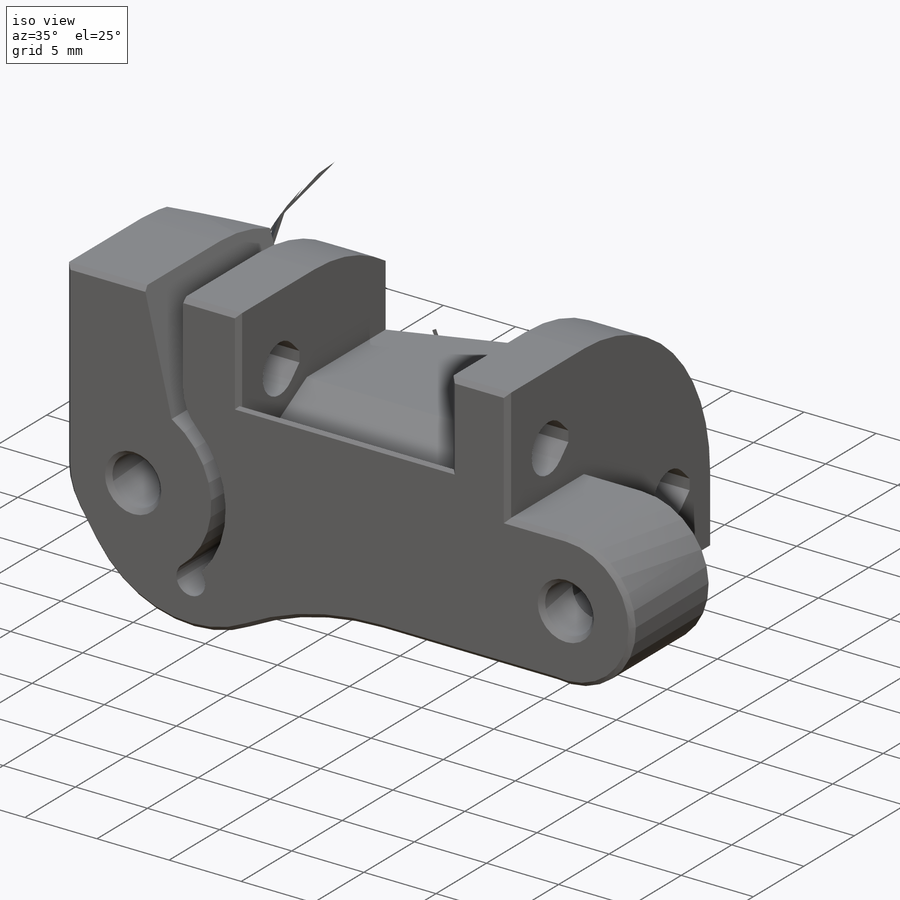
[diagram: iso view]
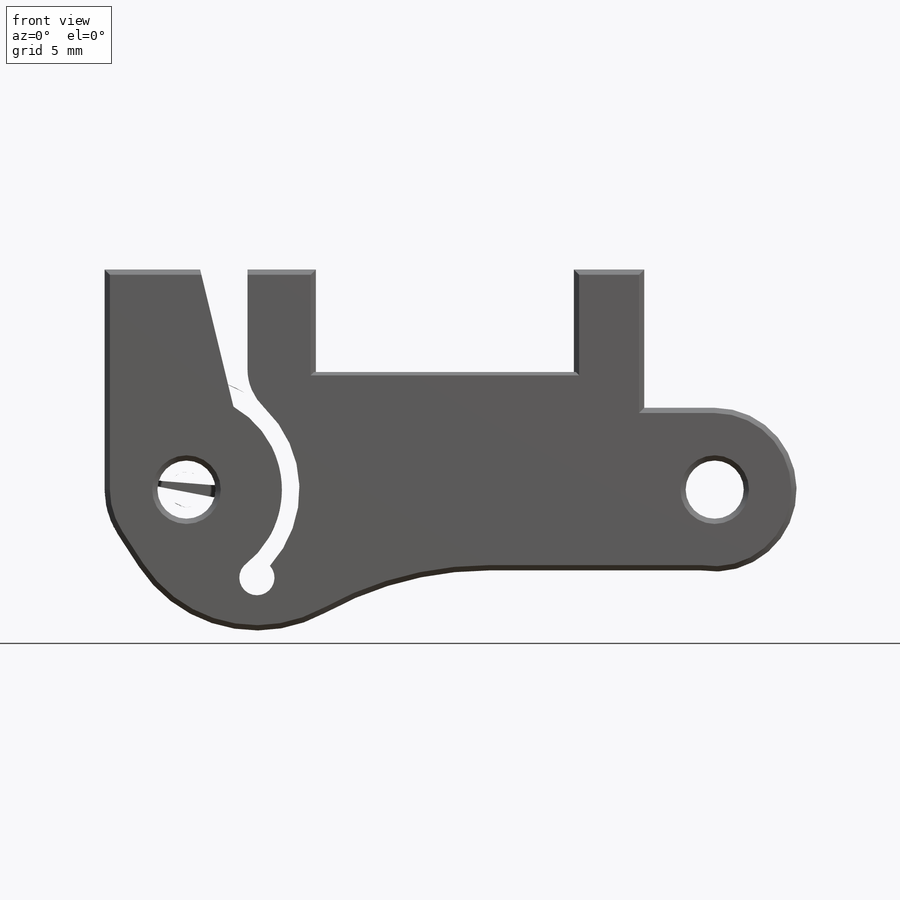
[diagram: front view]
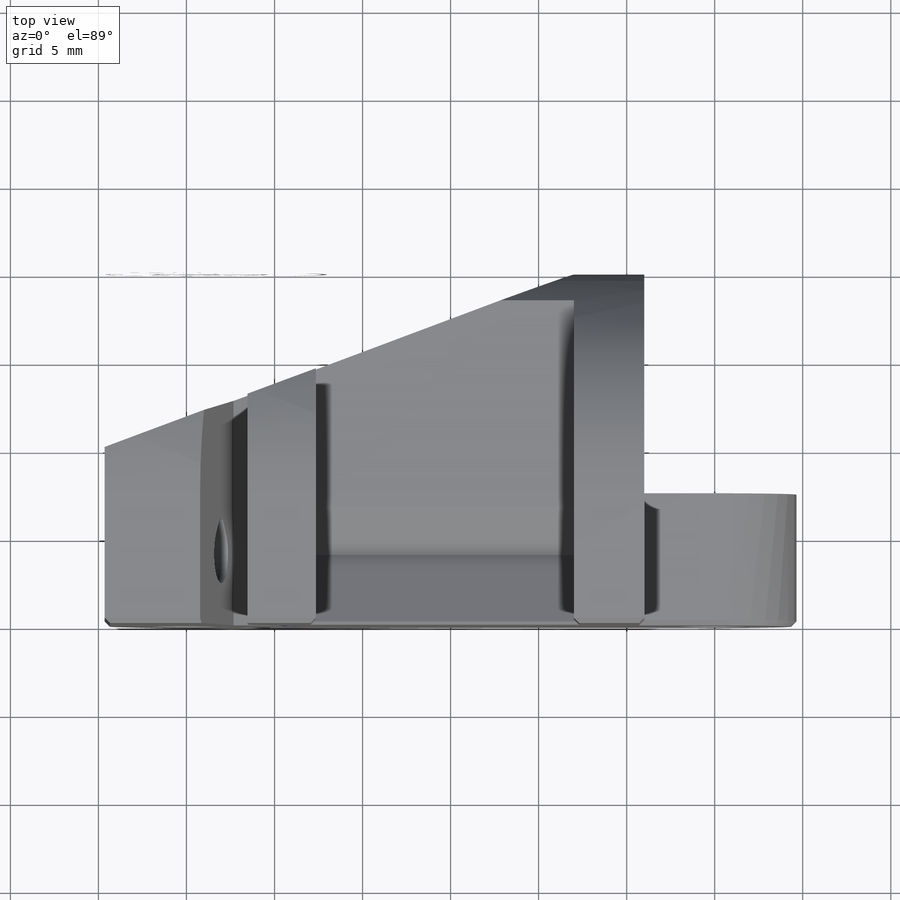
[diagram: top view]
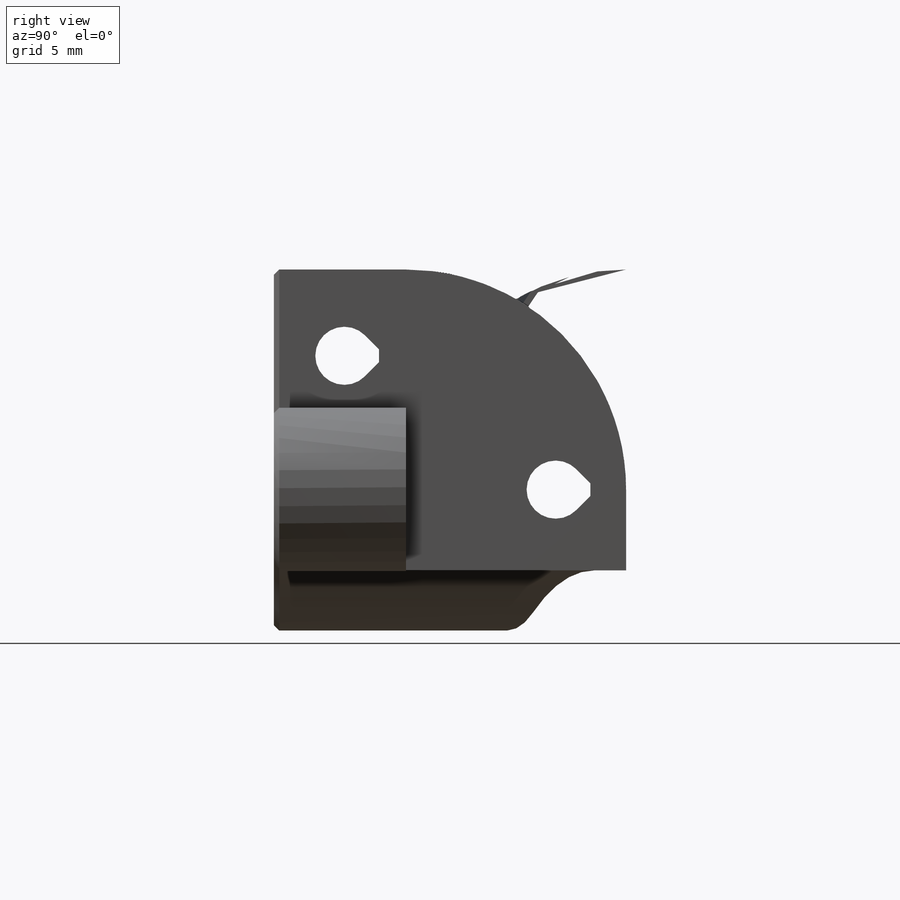
[diagram: right view]
SOLIDWORKS PART (.sldprt)
format: sldprt  version: not decoded by parser v0  size: 532,992 bytes
history: native  units: mm
features: sketch x12, cut_extrude x11, chamfer x4, material x1, extrude x1, plane x1, fillet x1 (+13 scaffold rows collapsed)
feature tree (44):
  scaffold x13  (default folders/planes/origin — collapsed)
  material  "Custom Plastic"
  sketch  "Sketch1"  dims[c1.D1=3.3mm c1.D6=3.0mm c1.D7=8.0mm c1.D2=5.0mm c1.D3=4.5mm c1.D4=10.0mm c1.D5=30.0mm c2.D6=~4.056095mm c3.D6=45.0deg c3.D7=7.5mm c3.D8=18.0mm c3.D2=4.0mm c3.D3=11.0mm c3.D4=2.0mm c3.D5=25.0mm c4.D6=3.0mm c4.D5=30.0mm c4.D3=4.0mm c4.D8=4.0mm]
  extrude  "Boss-Extrude1"  Depth=20mm
  sketch  "Sketch3"  dims[D1=3.3mm D2=4.0mm D3=4.9mm]
  cut_extrude  "Cut-Extrude3"  [1 undecoded]
  sketch  "Sketch4"  dims[D1=5.5mm]
  cut_extrude  "Cut-Extrude4"  Depth=12mm
  sketch  "Sketch5"  dims[D1=5.4mm]
  cut_extrude  "Cut-Extrude5"  Depth=12mm
  plane  "Plane1"  Offset=7.5mm
  sketch  "Sketch11"  dims[D1=10.0mm]
  cut_extrude  "Cut-Extrude11"  [1 undecoded]
  sketch  "Sketch10"
  cut_extrude  "Cut-Extrude10"  Depth=5mm
  chamfer  "Chamfer3"  Distance=6.5mm Angle=45deg
  sketch  "Sketch7"  dims[D1=5.6mm]
  cut_extrude  "Cut-Extrude7"  Depth=4.5mm
  sketch  "Sketch8"  dims[D1=3.3mm D2=16.0mm]
  cut_extrude  "Cut-Extrude8"  [1 undecoded]
  sketch  "Sketch9"  dims[D1=7.0mm]
  cut_extrude  "Cut-Extrude9"  Depth=2mm
  chamfer  "Chamfer6"  Distance=1.8mm Angle=45deg
  sketch  "Sketch12"  dims[D1=0.32mm D2=0.32mm]
  cut_extrude  "Cut-Extrude12"  [1 undecoded]
  chamfer  "Chamfer7"  Distance=0.3mm Angle=45deg
  sketch  "Sketch13"  dims[D2=1.0mm D1=0.8mm D3=5.0mm D4=3.0mm D5=0.8mm]
  cut_extrude  "Cut-Extrude13"  [1 undecoded]
  sketch  "Sketch14"  dims[D1=6.2mm]
  cut_extrude  "Cut-Extrude14"  Depth=1.8mm
  chamfer  "Chamfer8"  Distance=1.8mm Angle=45deg
  fillet  "Fillet1"  Radius=3mm
decode coverage: 23 of 29 modeling features carry decoded parameters
note: ~ marks probable driven/reference dimensions
note: 5 parameter values undecoded
summary: no parameter record found for 5 features
note: suppression state not decoded; provenance and decode notes live in map.json
